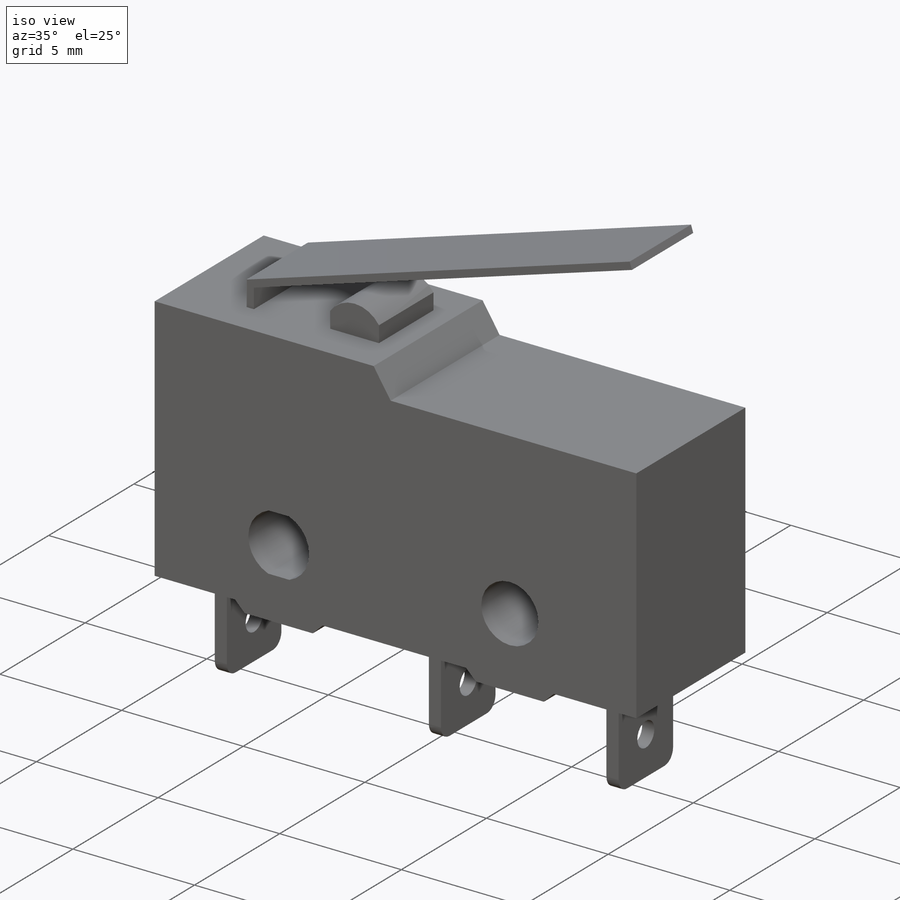
[diagram: iso view]
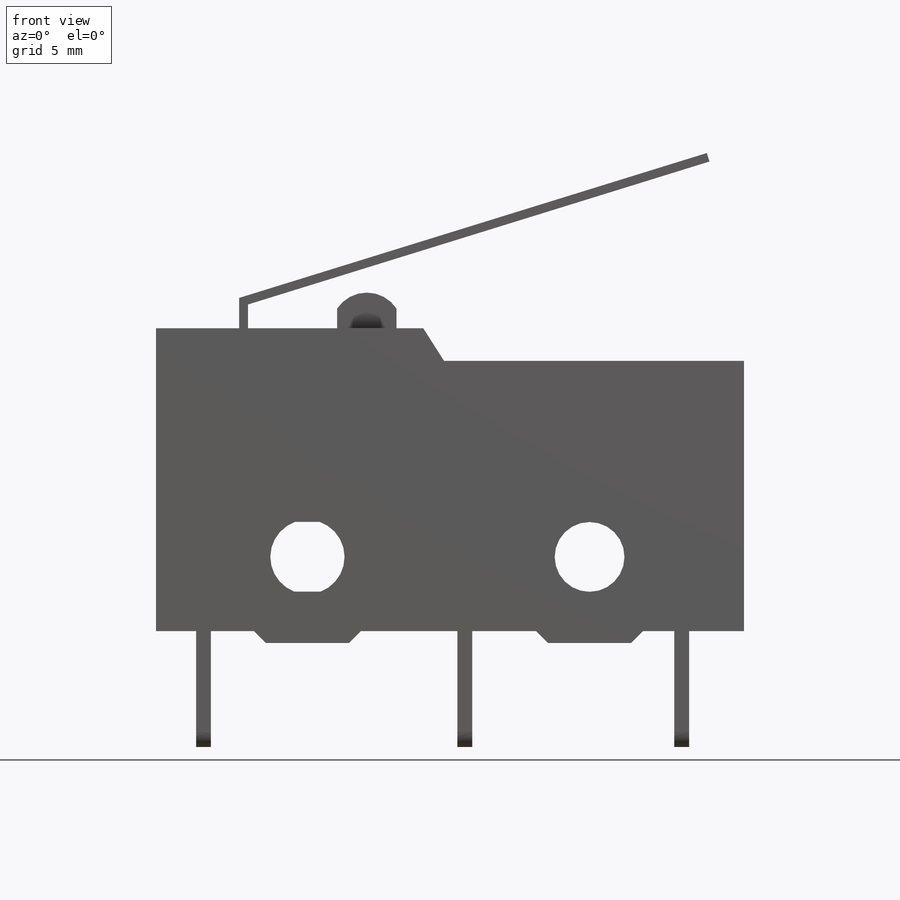
[diagram: front view]
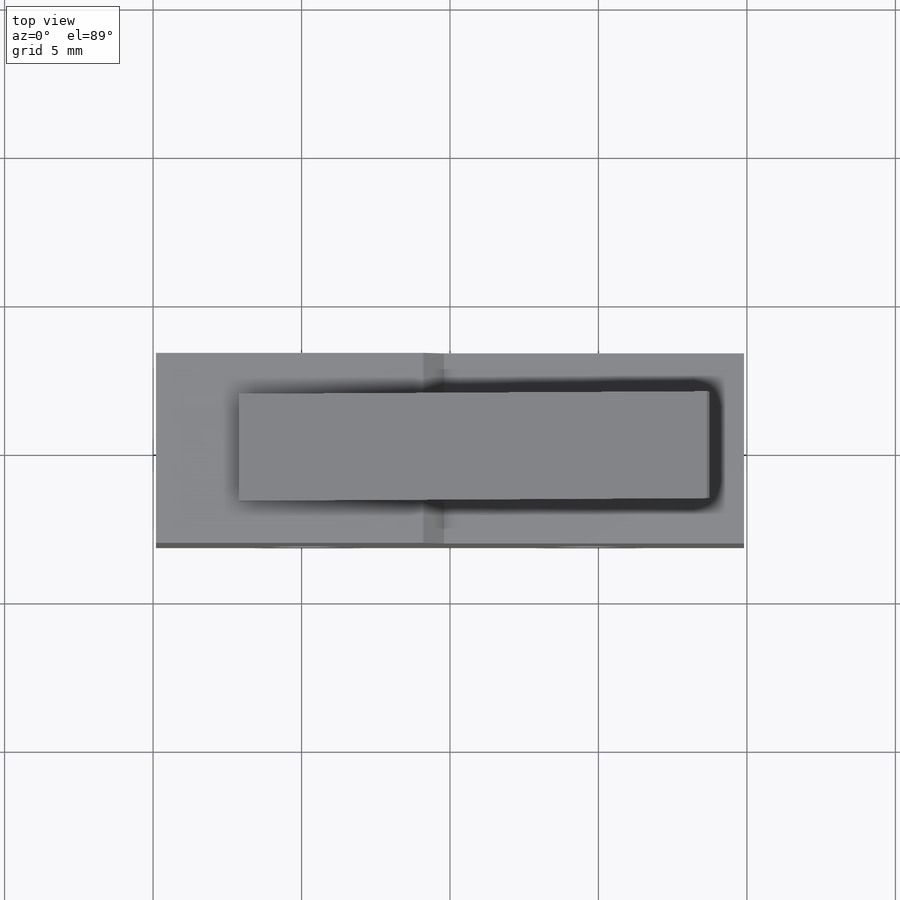
[diagram: top view]
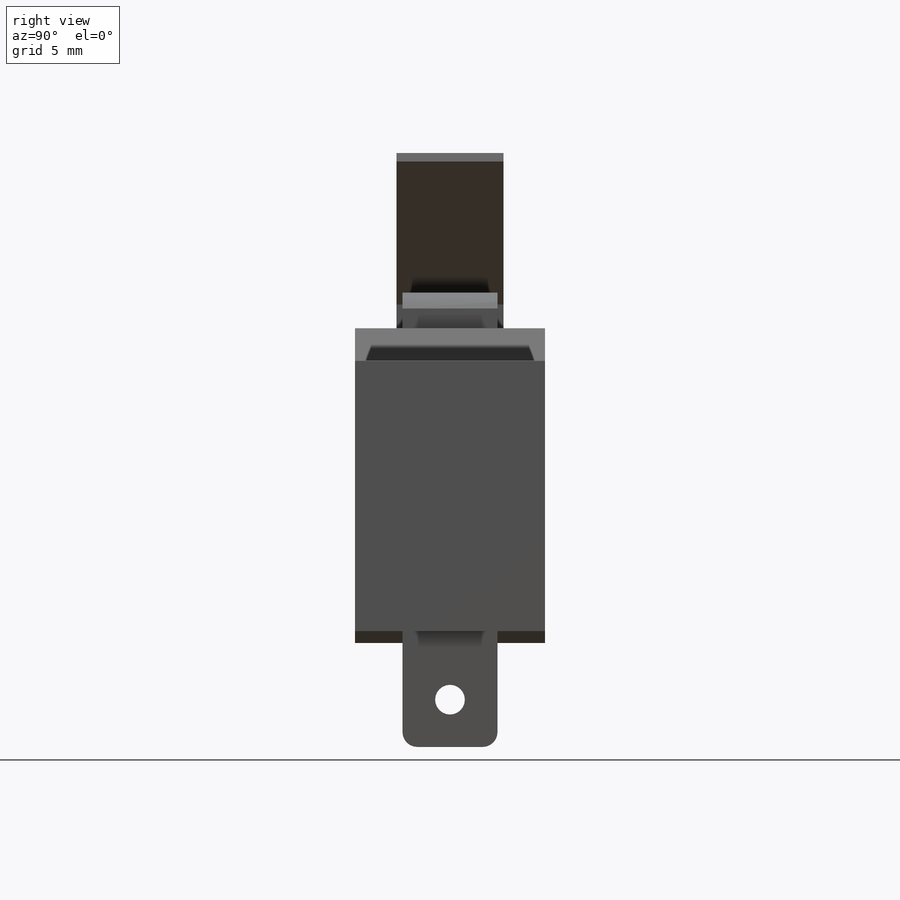
[diagram: right view]
SOLIDWORKS PART (.sldprt)
format: sldprt  version: not decoded by parser v0  size: 477,696 bytes
history: native  units: mm
features: sketch x16, extrude x8, cut_extrude x6, plane x5, material x1, hole x1, fillet x1 (+9 scaffold rows collapsed)
feature tree (47):
  scaffold x9  (default folders/planes/origin — collapsed)
  material  "Matériau <non spécifié>"
  plane  "Plan de face"
  plane  "Plan de dessus"
  plane  "Plan de droite"
  plane  "Plan1"
  sketch  "Esquisse1"  dims[D1=16.7mm D2=~16.788778mm D3=17.0mm D4=19.8mm D5=10.6mm D6=11.4mm D7=~11.621126mm D8=~11.686563mm]
  extrude  "Boss.-Extru.1"  Depth=3.6mm
  sketch  "Esquisse2"  dims[D1=2.8mm D2=17.0mm D3=10.6mm]
  extrude  "Boss.-Extru.2"  Depth=1.4mm
  sketch  "Esquisse3"  dims[D1=19.8mm D2=10.6mm]
  extrude  "Boss.-Extru.3"  Depth=1.4mm
  sketch  "Esquisse4"  dims[D1=3.6mm D2=0.3mm]
  extrude  "Boss.-Extru.4"  Depth=16.265608mm
  sketch  "Esquisse5"  dims[D1=9.0mm D2=19.8mm D3=1.1mm]
  cut_extrude  "Enlèv. mat.-Extru.1"  Depth=6.4mm
  sketch  "Esquisse6"  dims[D1=7.0mm D2=10.8mm D3=9.1mm D4=9.5mm]
  cut_extrude  "Enlèv. mat.-Extru.2"  Depth=6.4mm
  sketch  "Esquisse7"  dims[D1=6.6mm D2=13.3mm D3=9.1mm D4=9.5mm]
  cut_extrude  "Enlèv. mat.-Extru.3"  Depth=6.4mm
  sketch  "Esquisse8"  dims[D1=12.3mm D2=16.0mm D3=0.4mm]
  cut_extrude  "Enlèv. mat.-Extru.4"  Depth=6.4mm
  sketch  "Esquisse9"  dims[c1.D1=1.25mm c1.D2=1.25mm c1.D3=0.96mm c1.D4=~0.987568mm c1.D5=1.4mm c1.D6=~1.812432mm c1.D7=1.84mm c2.D3=0.96mm c2.D4=~0.987568mm c2.D5=1.4mm c2.D6=1.73mm c2.D7=2.9mm c2.D8=4.08mm c3.D6=1.73mm]
  cut_extrude  "Enlèv. mat.-Extru.5"  Depth=6.4mm
  plane  "Plan2"  Offset=0.2mm
  sketch  "Esquisse10"  dims[c1.D1=1.2mm c1.D2=1.0mm c1.D3=2.0mm c2.D2=1.0mm]
  extrude  "Boss.-Extru.5"  Depth=3.2mm
  sketch  "Esquisse11"  dims[D1=1.35mm D2=1.85mm D3=1.6mm D4=4.8mm]
  extrude  "Boss.-Extru.6"  Depth=3.9mm
  sketch  "Esquisse12"  dims[D1=3.65mm D2=4.15mm D3=1.6mm D4=4.8mm]
  extrude  "Boss.-Extru.7"  Depth=3.9mm
  sketch  "Esquisse13"  dims[D1=1.45mm D2=1.95mm D3=1.6mm D4=4.8mm]
  extrude  "Boss.-Extru.8"  Depth=3.9mm
  hole  "Diamètre du perçage Ø2.35 (2.35)1"  Diameter=2.35mm Depth=6.4mm
  sketch  "Esquisse15"
  sketch  "Esquisse14"  dims[hole-wizard template sketch: 59 standard entries collapsed; hole parameters kept: c18.Diamètre du perçage jusqu'au prochain=2.35mm c18.Profondeur du perçage jusqu'au prochain=6.4mm]
  fillet  "Congé1"  Radius=0.5mm
  sketch  "Esquisse16"  dims[D1=1.0mm]
  cut_extrude  "Enlèv. mat.-Extru.6"  [1 undecoded]
decode coverage: 30 of 32 modeling features carry decoded parameters
note: ~ marks probable driven/reference dimensions
note: 1 parameter value undecoded
note: suppression state not decoded; provenance and decode notes live in map.json
